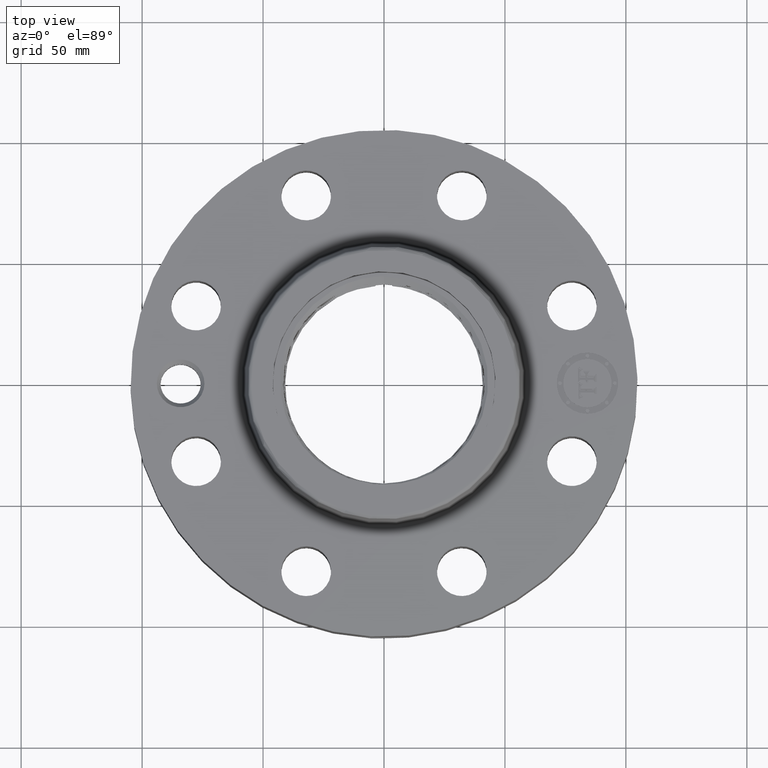
[diagram: clean part render]
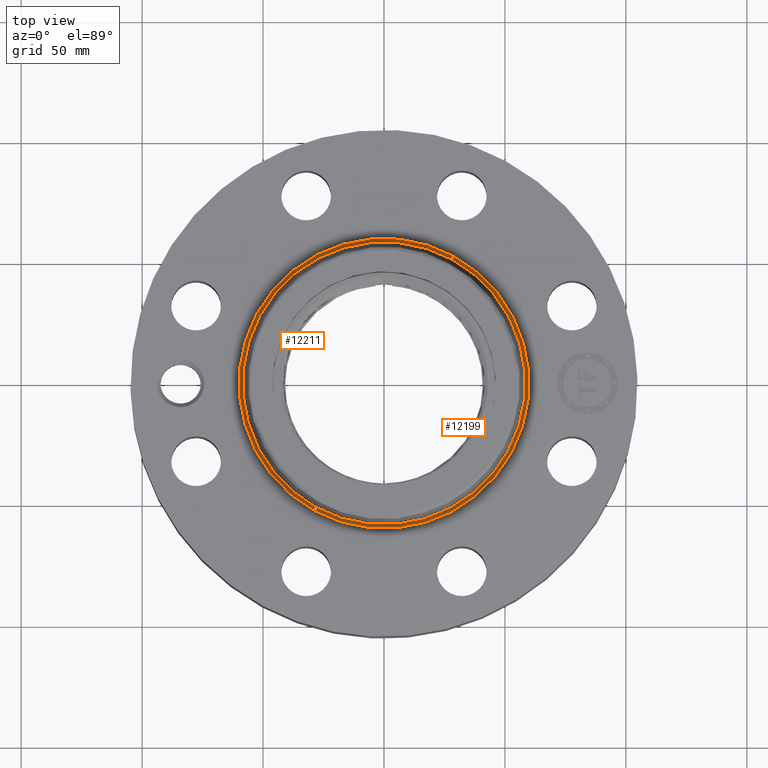
[diagram: same view with one multi-face feature highlighted, each face labeled with its STEP entity id]
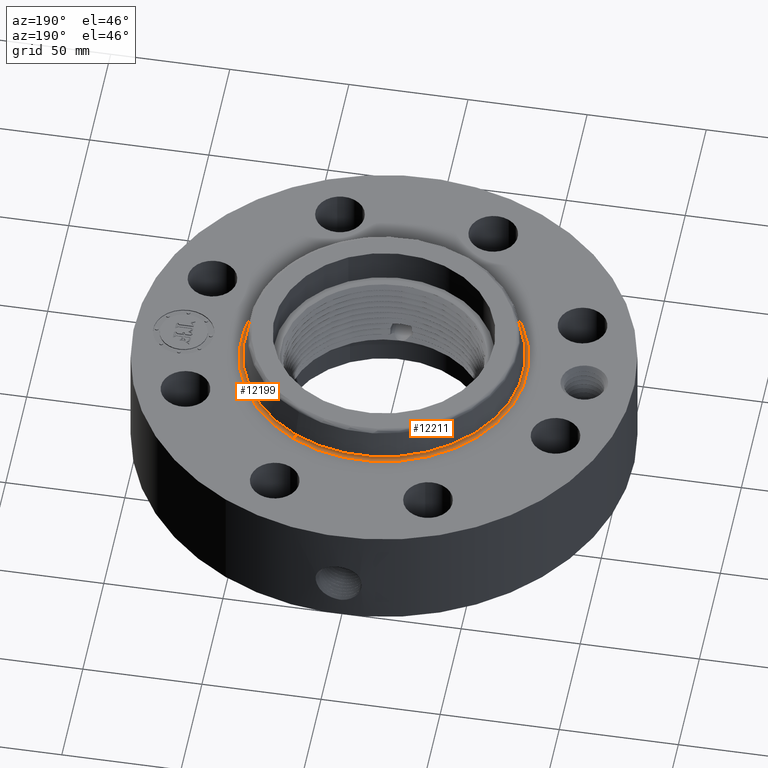
[diagram: same view with one multi-face feature highlighted, each face labeled with its STEP entity id]
A machine part, top view. The highlighted faces form ONE feature: a constant-radius fillet chain: 2 tangent blend faces with common blend radius 1.524 mm. The faces share edges in the B-rep.
A second angle (auxiliary view) of the same feature is appended — it is thin or edge-on in the first view.
Their STEP definitions:
[1] entity #12199 (Torus):
#10423=AXIS2_PLACEMENT_3D('Circle Axis2P3D',#10421,#10422,$) ;
#12172=AXIS2_PLACEMENT_3D('Torus Axis2P3D',#12169,#12170,#12171) ;
#12176=AXIS2_PLACEMENT_3D('Circle Axis2P3D',#12174,#12175,$) ;
#12183=AXIS2_PLACEMENT_3D('Circle Axis2P3D',#12181,#12182,$) ;
#12190=AXIS2_PLACEMENT_3D('Circle Axis2P3D',#12188,#12189,$) ;
#10416=CARTESIAN_POINT('Vertex',(-1.13161014174,-2.07139847022,1.81300000001)) ;
#10418=CARTESIAN_POINT('Vertex',(1.13161014174,2.07139847022,1.81300000001)) ;
#10421=CARTESIAN_POINT('Axis2P3D Location',(0.,0.,1.81300000001)) ;
#12169=CARTESIAN_POINT('Axis2P3D Location',(0.,0.,1.87300000001)) ;
#12174=CARTESIAN_POINT('Axis2P3D Location',(1.13161014174,2.07139847022,1.87300000001)) ;
#12178=CARTESIAN_POINT('Vertex',(1.10328162249,2.01954346356,1.86258110935)) ;
#12181=CARTESIAN_POINT('Axis2P3D Location',(0.,0.,1.86258110935)) ;
#12185=CARTESIAN_POINT('Vertex',(-1.10328162249,-2.01954346356,1.86258110935)) ;
#12188=CARTESIAN_POINT('Axis2P3D Location',(-1.13161014174,-2.07139847022,1.87300000001)) ;
#10422=DIRECTION('Axis2P3D Direction',(0.,0.,-0.0393700787402)) ;
#12170=DIRECTION('Axis2P3D Direction',(0.,0.,-0.0393700787402)) ;
#12171=DIRECTION('Axis2P3D XDirection',(-0.0188750212049,-0.0345504945626,0.)) ;
#12175=DIRECTION('Axis2P3D Direction',(-0.0345504945626,0.0188750212049,0.)) ;
#12182=DIRECTION('Axis2P3D Direction',(0.,0.,-0.0393700787402)) ;
#12189=DIRECTION('Axis2P3D Direction',(0.0345504945626,-0.0188750212049,0.)) ;
#12194=ORIENTED_EDGE('',*,*,#10425,.F.) ;
#12195=ORIENTED_EDGE('',*,*,#12180,.T.) ;
#12196=ORIENTED_EDGE('',*,*,#12187,.T.) ;
#12197=ORIENTED_EDGE('',*,*,#12192,.F.) ;
#12199=ADVANCED_FACE('PartBody',(#12198),#12173,.F.) ;
#10424=CIRCLE('generated circle',#10423,2.36034597788) ;
#12177=CIRCLE('generated circle',#12176,0.0600000000002) ;
#12184=CIRCLE('generated circle',#12183,2.3012575127) ;
#12191=CIRCLE('generated circle',#12190,0.0600000000002) ;
#12173=TOROIDAL_SURFACE('homeo Torus',#12172,2.36034597788,0.0600000000002) ;
#10425=EDGE_CURVE('',#10419,#10417,#10424,.T.) ;
#12180=EDGE_CURVE('',#10419,#12179,#12177,.T.) ;
#12187=EDGE_CURVE('',#12179,#12186,#12184,.T.) ;
#12192=EDGE_CURVE('',#10417,#12186,#12191,.T.) ;
#12193=EDGE_LOOP('',(#12194,#12195,#12196,#12197)) ;
#12198=FACE_OUTER_BOUND('',#12193,.T.) ;
#10417=VERTEX_POINT('',#10416) ;
#10419=VERTEX_POINT('',#10418) ;
#12179=VERTEX_POINT('',#12178) ;
#12186=VERTEX_POINT('',#12185) ;
[2] entity #12211 (Torus):
#10414=AXIS2_PLACEMENT_3D('Circle Axis2P3D',#10412,#10413,$) ;
#12172=AXIS2_PLACEMENT_3D('Torus Axis2P3D',#12169,#12170,#12171) ;
#12176=AXIS2_PLACEMENT_3D('Circle Axis2P3D',#12174,#12175,$) ;
#12190=AXIS2_PLACEMENT_3D('Circle Axis2P3D',#12188,#12189,$) ;
#12202=AXIS2_PLACEMENT_3D('Circle Axis2P3D',#12200,#12201,$) ;
#10412=CARTESIAN_POINT('Axis2P3D Location',(0.,0.,1.81300000001)) ;
#10416=CARTESIAN_POINT('Vertex',(-1.13161014174,-2.07139847022,1.81300000001)) ;
#10418=CARTESIAN_POINT('Vertex',(1.13161014174,2.07139847022,1.81300000001)) ;
#12169=CARTESIAN_POINT('Axis2P3D Location',(0.,0.,1.87300000001)) ;
#12174=CARTESIAN_POINT('Axis2P3D Location',(1.13161014174,2.07139847022,1.87300000001)) ;
#12178=CARTESIAN_POINT('Vertex',(1.10328162249,2.01954346356,1.86258110935)) ;
#12185=CARTESIAN_POINT('Vertex',(-1.10328162249,-2.01954346356,1.86258110935)) ;
#12188=CARTESIAN_POINT('Axis2P3D Location',(-1.13161014174,-2.07139847022,1.87300000001)) ;
#12200=CARTESIAN_POINT('Axis2P3D Location',(0.,0.,1.86258110935)) ;
#10413=DIRECTION('Axis2P3D Direction',(0.,0.,-0.0393700787402)) ;
#12170=DIRECTION('Axis2P3D Direction',(0.,0.,-0.0393700787402)) ;
#12171=DIRECTION('Axis2P3D XDirection',(-0.0188750212049,-0.0345504945626,0.)) ;
#12175=DIRECTION('Axis2P3D Direction',(-0.0345504945626,0.0188750212049,0.)) ;
#12189=DIRECTION('Axis2P3D Direction',(0.0345504945626,-0.0188750212049,0.)) ;
#12201=DIRECTION('Axis2P3D Direction',(0.,0.,-0.0393700787402)) ;
#12206=ORIENTED_EDGE('',*,*,#10420,.F.) ;
#12207=ORIENTED_EDGE('',*,*,#12192,.T.) ;
#12208=ORIENTED_EDGE('',*,*,#12204,.T.) ;
#12209=ORIENTED_EDGE('',*,*,#12180,.F.) ;
#12211=ADVANCED_FACE('PartBody',(#12210),#12173,.F.) ;
#10415=CIRCLE('generated circle',#10414,2.36034597788) ;
#12177=CIRCLE('generated circle',#12176,0.0600000000002) ;
#12191=CIRCLE('generated circle',#12190,0.0600000000002) ;
#12203=CIRCLE('generated circle',#12202,2.3012575127) ;
#12173=TOROIDAL_SURFACE('homeo Torus',#12172,2.36034597788,0.0600000000002) ;
#10420=EDGE_CURVE('',#10417,#10419,#10415,.T.) ;
#12180=EDGE_CURVE('',#10419,#12179,#12177,.T.) ;
#12192=EDGE_CURVE('',#10417,#12186,#12191,.T.) ;
#12204=EDGE_CURVE('',#12186,#12179,#12203,.T.) ;
#12205=EDGE_LOOP('',(#12206,#12207,#12208,#12209)) ;
#12210=FACE_OUTER_BOUND('',#12205,.T.) ;
#10417=VERTEX_POINT('',#10416) ;
#10419=VERTEX_POINT('',#10418) ;
#12179=VERTEX_POINT('',#12178) ;
#12186=VERTEX_POINT('',#12185) ;